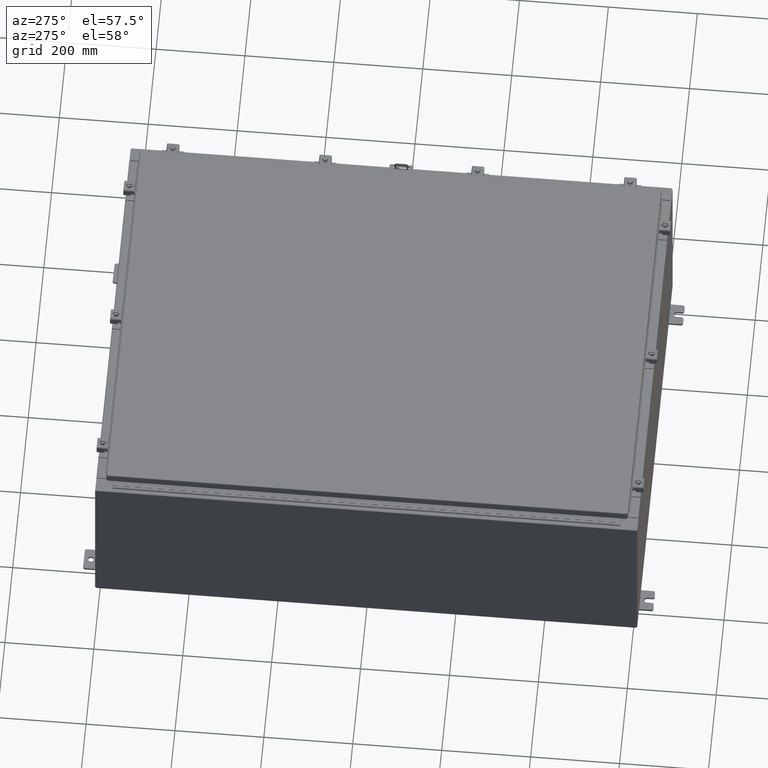
[diagram: clean part render]
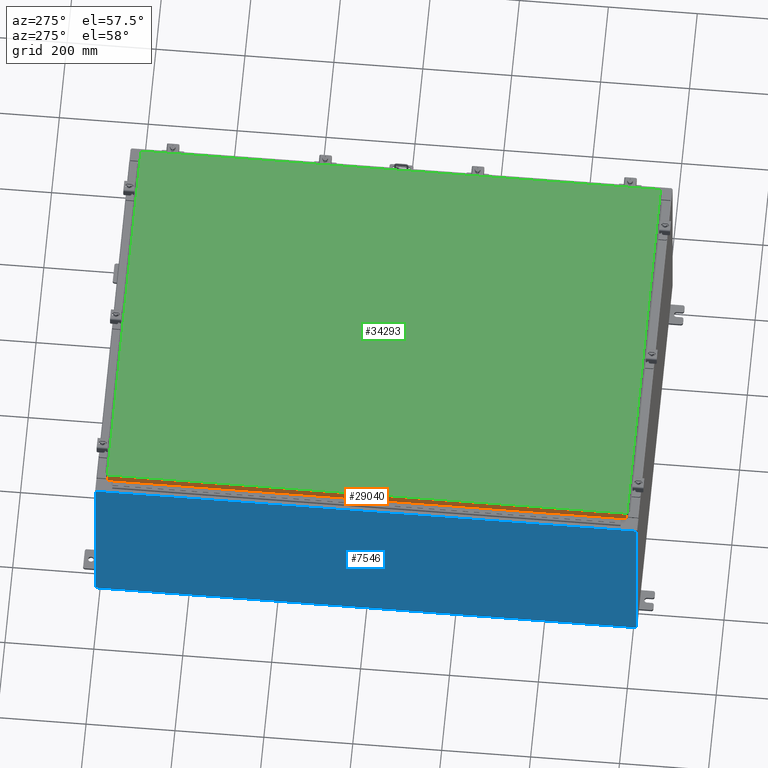
[diagram: same view with three faces highlighted in distinct colors, each labeled with its STEP entity id]
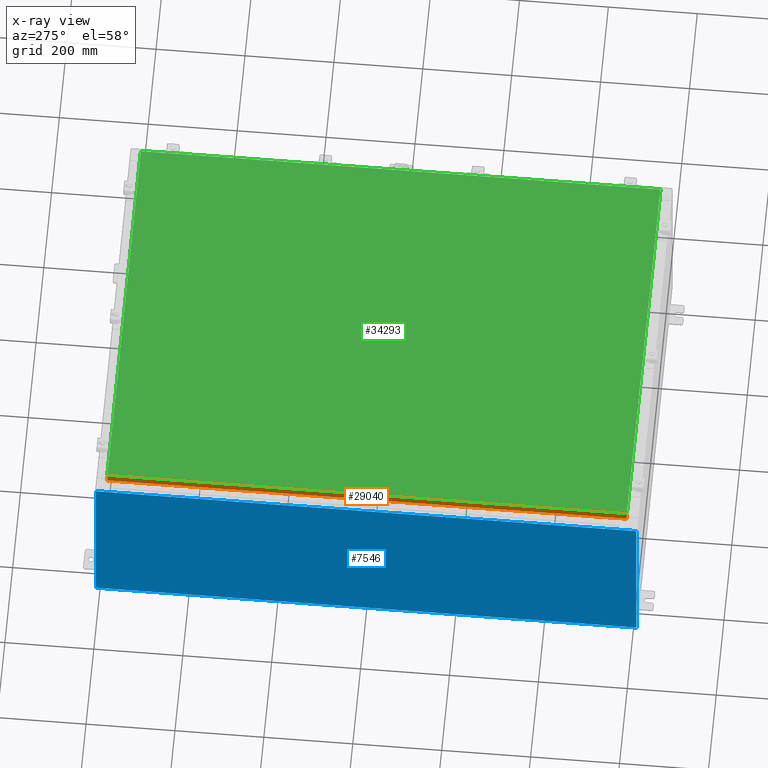
[diagram: x-ray of the same camera — body ghosted, the three highlighted faces saturated]
A machine part, auxiliary view with three faces highlighted in distinct colors.
The next image is the same camera in x-ray (body ghosted, the three faces saturated) — at least one of them is partly hidden behind the body in this view.
Their STEP definitions:

[orange] entity #29040 — the highlighted planar face has unit normal (1, -0, -0).
#1274 = CARTESIAN_POINT ( 'NONE',  ( -17.07799999999999900, -23.00515786437627200, -0.07470000000000015500 ) ) ;
#1343 = ORIENTED_EDGE ( 'NONE', *, *, #14630, .F. ) ;
#1961 = ORIENTED_EDGE ( 'NONE', *, *, #46198, .T. ) ;
#2087 = CARTESIAN_POINT ( 'NONE',  ( -17.07799999999999600, 23.00515786437627600, -0.7949999999999941600 ) ) ;
#2780 = VERTEX_POINT ( 'NONE', #2087 ) ;
#3063 = VECTOR ( 'NONE', #22501, 39.37007874015748100 ) ;
#4378 = LINE ( 'NONE', #9732, #3063 ) ;
#5842 = VERTEX_POINT ( 'NONE', #41747 ) ;
#7789 = VERTEX_POINT ( 'NONE', #23203 ) ;
#9732 = CARTESIAN_POINT ( 'NONE',  ( -17.07800000000000300, -23.09400000000000100, -0.7950000000000007100 ) ) ;
#9882 = ORIENTED_EDGE ( 'NONE', *, *, #20885, .F. ) ;
#10203 = EDGE_CURVE ( 'NONE', #5842, #7789, #30638, .T. ) ;
#14630 = EDGE_CURVE ( 'NONE', #31592, #5842, #42453, .T. ) ;
#14731 = DIRECTION ( 'NONE',  ( 1.000000000000000000, -9.463403459476060900E-017, -3.034122441942816500E-015 ) ) ;
#14853 = CARTESIAN_POINT ( 'NONE',  ( -17.07799999999999600, 23.00515786437627200, 2.119914043083468300E-013 ) ) ;
#15688 = LINE ( 'NONE', #14853, #37078 ) ;
#17907 = VECTOR ( 'NONE', #26893, 39.37007874015748100 ) ;
#19166 = DIRECTION ( 'NONE',  ( -3.034122441942816100E-015, 6.982962677686267500E-015, -1.000000000000000000 ) ) ;
#20885 = EDGE_CURVE ( 'NONE', #7789, #2780, #4378, .T. ) ;
#22284 = DIRECTION ( 'NONE',  ( -9.463403459476019000E-017, -1.000000000000000000, 1.419510518921414800E-016 ) ) ;
#22501 = DIRECTION ( 'NONE',  ( 9.463403459476099200E-017, 1.000000000000000000, 1.212498568245375300E-016 ) ) ;
#23203 = CARTESIAN_POINT ( 'NONE',  ( -17.07800000000000300, -23.00515786437626900, -0.7949999999999984900 ) ) ;
#26893 = DIRECTION ( 'NONE',  ( -3.034122441942816100E-015, 6.982962677686267500E-015, -1.000000000000000000 ) ) ;
#29040 = ADVANCED_FACE ( 'NONE', ( #51521 ), #53025, .F. ) ;
#30638 = LINE ( 'NONE', #1274, #17907 ) ;
#31136 = VECTOR ( 'NONE', #22284, 39.37007874015748100 ) ;
#31481 = CARTESIAN_POINT ( 'NONE',  ( -17.07799999999999600, 23.00515786437627200, -0.08770000000000682800 ) ) ;
#31592 = VERTEX_POINT ( 'NONE', #31481 ) ;
#36066 = CARTESIAN_POINT ( 'NONE',  ( -17.07799999999999600, 1.616160042716280000E-015, 5.245148147835385400E-014 ) ) ;
#37078 = VECTOR ( 'NONE', #19166, 39.37007874015748100 ) ;
#39288 = CARTESIAN_POINT ( 'NONE',  ( -17.07799999999999900, -23.09400000000000100, -0.08770000000000026400 ) ) ;
#41747 = CARTESIAN_POINT ( 'NONE',  ( -17.07799999999999900, -23.00515786437626900, -0.08770000000000245700 ) ) ;
#41835 = AXIS2_PLACEMENT_3D ( 'NONE', #36066, #14731, #44642 ) ;
#42453 = LINE ( 'NONE', #39288, #31136 ) ;
#43284 = ORIENTED_EDGE ( 'NONE', *, *, #10203, .F. ) ;
#44642 = DIRECTION ( 'NONE',  ( -3.034122441942816500E-015, 0.0000000000000000000, -1.000000000000000000 ) ) ;
#46198 = EDGE_CURVE ( 'NONE', #31592, #2780, #15688, .T. ) ;
#50658 = EDGE_LOOP ( 'NONE', ( #1343, #1961, #9882, #43284 ) ) ;
#51521 = FACE_OUTER_BOUND ( 'NONE', #50658, .T. ) ;
#53025 = PLANE ( 'NONE',  #41835 ) ;

[blue] entity #7546 — the highlighted planar face has unit normal (1, 0, 0).
#191 = CARTESIAN_POINT ( 'NONE',  ( -18.00000000000000400, 0.0000000000000000000, -6.201294945617877200E-014 ) ) ;
#294 = CARTESIAN_POINT ( 'NONE',  ( -18.00000000000000400, -23.92529999999998600, 0.01299999999999985200 ) ) ;
#1127 = VECTOR ( 'NONE', #44383, 39.37007874015748100 ) ;
#1153 = VECTOR ( 'NONE', #7533, 39.37007874015748100 ) ;
#2454 = LINE ( 'NONE', #40082, #1127 ) ;
#3247 = CARTESIAN_POINT ( 'NONE',  ( -18.00000000000000400, -23.92529999999999600, -6.201294945617877200E-014 ) ) ;
#4469 = DIRECTION ( 'NONE',  ( 3.430827668758847900E-015, 0.0000000000000000000, -1.000000000000000000 ) ) ;
#7533 = DIRECTION ( 'NONE',  ( -3.430827668758847900E-015, 0.0000000000000000000, 1.000000000000000000 ) ) ;
#7546 = ADVANCED_FACE ( 'NONE', ( #20799 ), #8570, .F. ) ;
#8194 = EDGE_CURVE ( 'NONE', #14795, #11051, #9970, .T. ) ;
#8570 = PLANE ( 'NONE',  #38210 ) ;
#9970 = LINE ( 'NONE', #31754, #20054 ) ;
#11051 = VERTEX_POINT ( 'NONE', #48905 ) ;
#11689 = ORIENTED_EDGE ( 'NONE', *, *, #41231, .F. ) ;
#12939 = EDGE_LOOP ( 'NONE', ( #20286, #32527, #11689, #17242 ) ) ;
#14795 = VERTEX_POINT ( 'NONE', #23232 ) ;
#17242 = ORIENTED_EDGE ( 'NONE', *, *, #44599, .T. ) ;
#20054 = VECTOR ( 'NONE', #36052, 39.37007874015748100 ) ;
#20286 = ORIENTED_EDGE ( 'NONE', *, *, #53325, .T. ) ;
#20799 = FACE_OUTER_BOUND ( 'NONE', #12939, .T. ) ;
#23232 = CARTESIAN_POINT ( 'NONE',  ( -18.00000000000006000, 23.92529999999998900, 15.83759999999999500 ) ) ;
#29225 = VERTEX_POINT ( 'NONE', #294 ) ;
#30116 = DIRECTION ( 'NONE',  ( 1.000000000000000000, 0.0000000000000000000, 3.430827668758847900E-015 ) ) ;
#31754 = CARTESIAN_POINT ( 'NONE',  ( -18.00000000000000400, 23.92529999999998900, -6.201294945617877200E-014 ) ) ;
#32527 = ORIENTED_EDGE ( 'NONE', *, *, #8194, .T. ) ;
#33550 = LINE ( 'NONE', #39859, #43528 ) ;
#34417 = CARTESIAN_POINT ( 'NONE',  ( -18.00000000000006000, -23.92529999999998600, 15.83759999999998200 ) ) ;
#36052 = DIRECTION ( 'NONE',  ( 3.430827668758847900E-015, 0.0000000000000000000, -1.000000000000000000 ) ) ;
#36592 = LINE ( 'NONE', #3247, #1153 ) ;
#38210 = AXIS2_PLACEMENT_3D ( 'NONE', #191, #30116, #4469 ) ;
#39859 = CARTESIAN_POINT ( 'NONE',  ( -18.00000000000000400, 23.92529999999998900, 0.01299999999999985200 ) ) ;
#40082 = CARTESIAN_POINT ( 'NONE',  ( -18.00000000000006000, -23.92529999999998900, 15.83759999999998200 ) ) ;
#41231 = EDGE_CURVE ( 'NONE', #29225, #11051, #33550, .T. ) ;
#43528 = VECTOR ( 'NONE', #43959, 39.37007874015748100 ) ;
#43959 = DIRECTION ( 'NONE',  ( -0.0000000000000000000, 1.000000000000000000, -0.0000000000000000000 ) ) ;
#44383 = DIRECTION ( 'NONE',  ( 0.0000000000000000000, 1.000000000000000000, 0.0000000000000000000 ) ) ;
#44599 = EDGE_CURVE ( 'NONE', #29225, #45353, #36592, .T. ) ;
#45353 = VERTEX_POINT ( 'NONE', #34417 ) ;
#48905 = CARTESIAN_POINT ( 'NONE',  ( -18.00000000000000400, 23.92529999999998900, 0.01299999999999985200 ) ) ;
#53325 = EDGE_CURVE ( 'NONE', #45353, #14795, #2454, .T. ) ;

[green] entity #34293 — the highlighted planar face has unit normal (0, 0, -1).
#1056 = CARTESIAN_POINT ( 'NONE',  ( 16.99029999999999800, -23.00630000000000300, 0.0000000000000000000 ) ) ;
#2336 = VERTEX_POINT ( 'NONE', #52567 ) ;
#5316 = DIRECTION ( 'NONE',  ( 0.0000000000000000000, 1.000000000000000000, 0.0000000000000000000 ) ) ;
#6664 = EDGE_CURVE ( 'NONE', #2336, #51449, #41158, .T. ) ;
#7163 = DIRECTION ( 'NONE',  ( 0.0000000000000000000, -1.000000000000000000, 0.0000000000000000000 ) ) ;
#10324 = EDGE_CURVE ( 'NONE', #15415, #33748, #45314, .T. ) ;
#11174 = VECTOR ( 'NONE', #53370, 39.37007874015748100 ) ;
#11366 = CARTESIAN_POINT ( 'NONE',  ( 16.99029999999999800, -23.00630000000000300, 0.0000000000000000000 ) ) ;
#13101 = LINE ( 'NONE', #1056, #44544 ) ;
#15415 = VERTEX_POINT ( 'NONE', #36404 ) ;
#16142 = LINE ( 'NONE', #37083, #38832 ) ;
#19203 = CARTESIAN_POINT ( 'NONE',  ( -16.99029999999999800, -23.00630000000000300, 2.185478394931410600E-015 ) ) ;
#21465 = CARTESIAN_POINT ( 'NONE',  ( 16.99029999999999800, 23.00630000000001000, 2.185478394931410600E-015 ) ) ;
#23698 = DIRECTION ( 'NONE',  ( 0.0000000000000000000, 0.0000000000000000000, -1.000000000000000000 ) ) ;
#25785 = DIRECTION ( 'NONE',  ( -1.000000000000000000, -0.0000000000000000000, -0.0000000000000000000 ) ) ;
#29717 = ORIENTED_EDGE ( 'NONE', *, *, #50563, .T. ) ;
#29806 = VECTOR ( 'NONE', #25785, 39.37007874015748100 ) ;
#30216 = EDGE_LOOP ( 'NONE', ( #36464, #47542, #52870, #29717 ) ) ;
#32122 = CARTESIAN_POINT ( 'NONE',  ( 0.0000000000000000000, 0.0000000000000000000, 0.0000000000000000000 ) ) ;
#33131 = FACE_OUTER_BOUND ( 'NONE', #30216, .T. ) ;
#33748 = VERTEX_POINT ( 'NONE', #11366 ) ;
#34293 = ADVANCED_FACE ( 'NONE', ( #33131 ), #36405, .F. ) ;
#36404 = CARTESIAN_POINT ( 'NONE',  ( -16.99029999999999800, -23.00630000000000300, 2.185478394931410600E-015 ) ) ;
#36405 = PLANE ( 'NONE',  #49172 ) ;
#36464 = ORIENTED_EDGE ( 'NONE', *, *, #10324, .T. ) ;
#37083 = CARTESIAN_POINT ( 'NONE',  ( -16.99029999999998400, 23.00630000000001000, -2.185478394931410600E-015 ) ) ;
#38832 = VECTOR ( 'NONE', #7163, 39.37007874015748100 ) ;
#40588 = EDGE_CURVE ( 'NONE', #33748, #2336, #13101, .T. ) ;
#41158 = LINE ( 'NONE', #21465, #29806 ) ;
#44544 = VECTOR ( 'NONE', #5316, 39.37007874015748100 ) ;
#45314 = LINE ( 'NONE', #19203, #11174 ) ;
#47542 = ORIENTED_EDGE ( 'NONE', *, *, #40588, .T. ) ;
#47810 = CARTESIAN_POINT ( 'NONE',  ( -16.99029999999998400, 23.00630000000001000, -2.185478394931410600E-015 ) ) ;
#49172 = AXIS2_PLACEMENT_3D ( 'NONE', #32122, #23698, #53545 ) ;
#50563 = EDGE_CURVE ( 'NONE', #51449, #15415, #16142, .T. ) ;
#51449 = VERTEX_POINT ( 'NONE', #47810 ) ;
#52567 = CARTESIAN_POINT ( 'NONE',  ( 16.99029999999999800, 23.00630000000001000, 2.185478394931410600E-015 ) ) ;
#52870 = ORIENTED_EDGE ( 'NONE', *, *, #6664, .T. ) ;
#53370 = DIRECTION ( 'NONE',  ( 1.000000000000000000, -0.0000000000000000000, -0.0000000000000000000 ) ) ;
#53545 = DIRECTION ( 'NONE',  ( -1.000000000000000000, 0.0000000000000000000, -0.0000000000000000000 ) ) ;